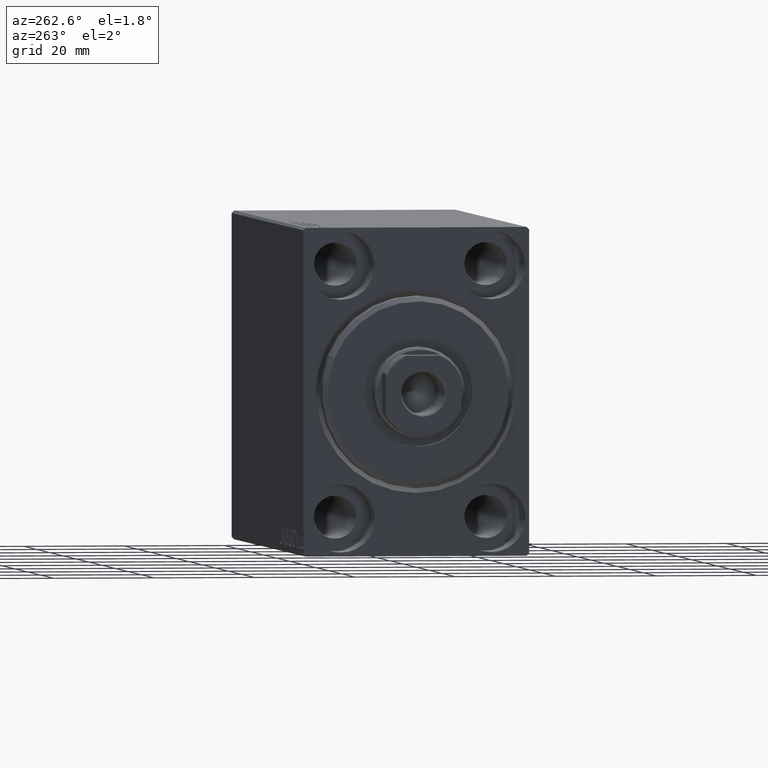
[diagram: clean part render]
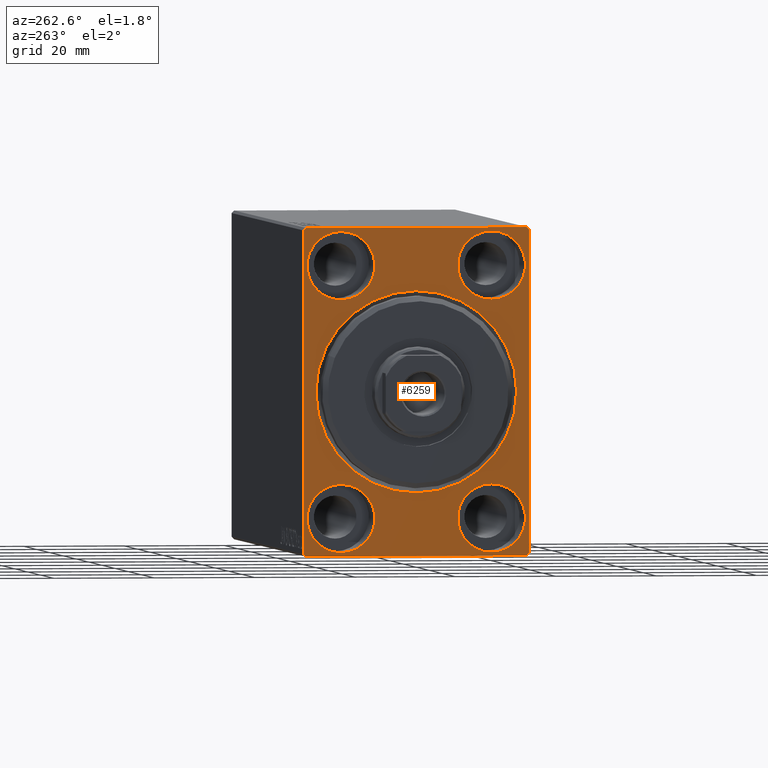
[diagram: same view with one face highlighted and labeled with its STEP entity id]
A machine part, auxiliary view. The second image highlights one B-rep face of the part: STEP entity #6259.
In plain terms, the highlighted planar face has unit normal (1, 0, 0).
Its self-contained STEP definition (entity closure, byte-faithful):
#98 = CARTESIAN_POINT ( 'NONE',  ( 0.000000000000000000, 22.50000000000000000, -32.50000000000000711 ) ) ;
#331 = VECTOR ( 'NONE', #32405, 1000.000000000000114 ) ;
#362 = ORIENTED_EDGE ( 'NONE', *, *, #21628, .F. ) ;
#1165 = CARTESIAN_POINT ( 'NONE',  ( 0.000000000000000000, 14.99999999999999645, -25.00000000000000000 ) ) ;
#1236 = CARTESIAN_POINT ( 'NONE',  ( 0.000000000000000000, -22.00000000000000711, -32.50000000000000711 ) ) ;
#1441 = DIRECTION ( 'NONE',  ( 0.000000000000000000, 0.000000000000000000, 1.000000000000000000 ) ) ;
#1593 = DIRECTION ( 'NONE',  ( 0.000000000000000000, 0.000000000000000000, -1.000000000000000000 ) ) ;
#1604 = CARTESIAN_POINT ( 'NONE',  ( 0.000000000000000000, 15.00000000000000355, 31.75000000000000000 ) ) ;
#2065 = DIRECTION ( 'NONE',  ( 0.000000000000000000, 0.000000000000000000, 1.000000000000000000 ) ) ;
#2189 = ORIENTED_EDGE ( 'NONE', *, *, #35003, .F. ) ;
#3429 = LINE ( 'NONE', #98, #38904 ) ;
#3916 = CARTESIAN_POINT ( 'NONE',  ( 0.000000000000000000, -22.50000000000000711, 31.99999999999999289 ) ) ;
#5059 = EDGE_CURVE ( 'NONE', #11037, #24425, #41064, .T. ) ;
#5189 = LINE ( 'NONE', #18676, #331 ) ;
#5258 = EDGE_LOOP ( 'NONE', ( #19400, #2189 ) ) ;
#5464 = DIRECTION ( 'NONE',  ( -1.000000000000000000, 0.000000000000000000, 0.000000000000000000 ) ) ;
#5930 = CARTESIAN_POINT ( 'NONE',  ( 0.000000000000000000, -22.50000000000000711, 31.99999999999999289 ) ) ;
#6185 = LINE ( 'NONE', #9070, #20643 ) ;
#6259 = ADVANCED_FACE ( 'NONE', ( #21947, #15309, #28365, #21512, #11351, #32137 ), #31915, .F. ) ;
#6712 = EDGE_CURVE ( 'NONE', #37133, #41267, #36459, .T. ) ;
#6739 = ORIENTED_EDGE ( 'NONE', *, *, #30193, .F. ) ;
#6767 = CARTESIAN_POINT ( 'NONE',  ( 0.000000000000000000, 15.00000000000000355, 25.00000000000000000 ) ) ;
#7021 = CARTESIAN_POINT ( 'NONE',  ( 0.000000000000000000, 22.49999999999999289, 32.50000000000000000 ) ) ;
#7111 = CARTESIAN_POINT ( 'NONE',  ( 0.000000000000000000, -15.00000000000000355, -31.75000000000000000 ) ) ;
#7470 = LINE ( 'NONE', #24278, #22589 ) ;
#7562 = ORIENTED_EDGE ( 'NONE', *, *, #12898, .T. ) ;
#7589 = DIRECTION ( 'NONE',  ( -1.000000000000000000, 0.000000000000000000, 0.000000000000000000 ) ) ;
#7672 = DIRECTION ( 'NONE',  ( -0.000000000000000000, 0.7071067811865474617, 0.7071067811865474617 ) ) ;
#7743 = ORIENTED_EDGE ( 'NONE', *, *, #13160, .T. ) ;
#7968 = AXIS2_PLACEMENT_3D ( 'NONE', #8978, #28230, #35981 ) ;
#8017 = DIRECTION ( 'NONE',  ( 1.000000000000000000, 0.000000000000000000, 0.000000000000000000 ) ) ;
#8083 = DIRECTION ( 'NONE',  ( 0.000000000000000000, 0.000000000000000000, 1.000000000000000000 ) ) ;
#8755 = LINE ( 'NONE', #1236, #12261 ) ;
#8978 = CARTESIAN_POINT ( 'NONE',  ( 0.000000000000000000, 0.000000000000000000, 0.000000000000000000 ) ) ;
#9070 = CARTESIAN_POINT ( 'NONE',  ( 0.000000000000000000, -22.50000000000000711, -32.50000000000000711 ) ) ;
#9328 = VERTEX_POINT ( 'NONE', #30154 ) ;
#9761 = CARTESIAN_POINT ( 'NONE',  ( 0.000000000000000000, 14.99999999999999645, -25.00000000000000000 ) ) ;
#10029 = ORIENTED_EDGE ( 'NONE', *, *, #5059, .F. ) ;
#10065 = DIRECTION ( 'NONE',  ( 1.000000000000000000, 0.000000000000000000, 0.000000000000000000 ) ) ;
#10416 = VERTEX_POINT ( 'NONE', #26177 ) ;
#10437 = DIRECTION ( 'NONE',  ( -1.000000000000000000, 0.000000000000000000, 0.000000000000000000 ) ) ;
#10911 = CIRCLE ( 'NONE', #23625, 6.749999999999999112 ) ;
#11037 = VERTEX_POINT ( 'NONE', #5930 ) ;
#11351 = FACE_BOUND ( 'NONE', #27649, .T. ) ;
#12261 = VECTOR ( 'NONE', #22024, 1000.000000000000114 ) ;
#12560 = EDGE_LOOP ( 'NONE', ( #10029, #7743, #16458, #27702, #12847, #36982, #19622, #15077 ) ) ;
#12847 = ORIENTED_EDGE ( 'NONE', *, *, #23876, .F. ) ;
#12898 = EDGE_CURVE ( 'NONE', #23324, #33015, #21716, .T. ) ;
#13160 = EDGE_CURVE ( 'NONE', #11037, #38866, #17180, .T. ) ;
#13247 = DIRECTION ( 'NONE',  ( -0.000000000000000000, 0.7071067811865525687, -0.7071067811865425767 ) ) ;
#13466 = AXIS2_PLACEMENT_3D ( 'NONE', #9761, #39881, #42995 ) ;
#13602 = DIRECTION ( 'NONE',  ( 0.000000000000000000, -1.067522139062650425E-16, 1.000000000000000000 ) ) ;
#15028 = VERTEX_POINT ( 'NONE', #21230 ) ;
#15077 = ORIENTED_EDGE ( 'NONE', *, *, #31988, .T. ) ;
#15161 = CARTESIAN_POINT ( 'NONE',  ( 0.000000000000000000, -14.99999999999999645, 25.00000000000000000 ) ) ;
#15309 = FACE_BOUND ( 'NONE', #5258, .T. ) ;
#15518 = AXIS2_PLACEMENT_3D ( 'NONE', #22201, #21985, #2065 ) ;
#15754 = CIRCLE ( 'NONE', #7968, 20.00000000000000355 ) ;
#16275 = VERTEX_POINT ( 'NONE', #28729 ) ;
#16343 = CARTESIAN_POINT ( 'NONE',  ( 0.000000000000000000, 22.49999999999999289, 32.00000000000002132 ) ) ;
#16458 = ORIENTED_EDGE ( 'NONE', *, *, #19836, .F. ) ;
#16573 = DIRECTION ( 'NONE',  ( 0.000000000000000000, 1.000000000000000000, 0.000000000000000000 ) ) ;
#16732 = EDGE_CURVE ( 'NONE', #10416, #30643, #26104, .T. ) ;
#16971 = LINE ( 'NONE', #7021, #42462 ) ;
#17101 = DIRECTION ( 'NONE',  ( 0.000000000000000000, 0.000000000000000000, 1.000000000000000000 ) ) ;
#17180 = LINE ( 'NONE', #3916, #40850 ) ;
#18343 = EDGE_CURVE ( 'NONE', #15028, #43167, #7470, .T. ) ;
#18421 = CARTESIAN_POINT ( 'NONE',  ( 0.000000000000000000, -14.99999999999999645, 18.25000000000000355 ) ) ;
#18676 = CARTESIAN_POINT ( 'NONE',  ( 0.000000000000000000, 22.50000000000000000, -32.00000000000000711 ) ) ;
#19400 = ORIENTED_EDGE ( 'NONE', *, *, #20139, .F. ) ;
#19577 = CARTESIAN_POINT ( 'NONE',  ( 0.000000000000000000, 14.99999999999999645, -18.25000000000000355 ) ) ;
#19622 = ORIENTED_EDGE ( 'NONE', *, *, #30134, .F. ) ;
#19836 = EDGE_CURVE ( 'NONE', #15028, #38866, #16971, .T. ) ;
#20139 = EDGE_CURVE ( 'NONE', #32770, #16275, #38907, .T. ) ;
#20150 = CIRCLE ( 'NONE', #22259, 6.749999999999999112 ) ;
#20232 = DIRECTION ( 'NONE',  ( 0.000000000000000000, 0.000000000000000000, -1.000000000000000000 ) ) ;
#20258 = DIRECTION ( 'NONE',  ( 0.000000000000000000, 0.000000000000000000, 1.000000000000000000 ) ) ;
#20643 = VECTOR ( 'NONE', #16573, 1000.000000000000000 ) ;
#20736 = CARTESIAN_POINT ( 'NONE',  ( 0.000000000000000000, 15.00000000000000355, 18.25000000000000355 ) ) ;
#21230 = CARTESIAN_POINT ( 'NONE',  ( 0.000000000000000000, 22.00000000000000711, 32.50000000000000000 ) ) ;
#21278 = CARTESIAN_POINT ( 'NONE',  ( 0.000000000000000000, -22.50000000000000711, -32.00000000000000711 ) ) ;
#21512 = FACE_BOUND ( 'NONE', #43251, .T. ) ;
#21591 = VERTEX_POINT ( 'NONE', #27352 ) ;
#21628 = EDGE_CURVE ( 'NONE', #41267, #37133, #28305, .T. ) ;
#21716 = CIRCLE ( 'NONE', #28094, 20.00000000000000355 ) ;
#21722 = ORIENTED_EDGE ( 'NONE', *, *, #31940, .T. ) ;
#21947 = FACE_BOUND ( 'NONE', #31873, .T. ) ;
#21985 = DIRECTION ( 'NONE',  ( -1.000000000000000000, 0.000000000000000000, 0.000000000000000000 ) ) ;
#22024 = DIRECTION ( 'NONE',  ( -0.000000000000000000, -0.7071067811865474617, 0.7071067811865474617 ) ) ;
#22033 = EDGE_CURVE ( 'NONE', #30643, #10416, #40277, .T. ) ;
#22201 = CARTESIAN_POINT ( 'NONE',  ( 0.000000000000000000, -15.00000000000000355, -25.00000000000000000 ) ) ;
#22259 = AXIS2_PLACEMENT_3D ( 'NONE', #6767, #26905, #20258 ) ;
#22585 = VERTEX_POINT ( 'NONE', #22950 ) ;
#22589 = VECTOR ( 'NONE', #13247, 999.9999999999998863 ) ;
#22769 = CARTESIAN_POINT ( 'NONE',  ( 0.000000000000000000, -21.99999999999999289, 32.49999999999999289 ) ) ;
#22950 = CARTESIAN_POINT ( 'NONE',  ( 0.000000000000000000, 22.50000000000000000, -32.00000000000000711 ) ) ;
#23324 = VERTEX_POINT ( 'NONE', #28287 ) ;
#23625 = AXIS2_PLACEMENT_3D ( 'NONE', #1165, #7589, #17101 ) ;
#23876 = EDGE_CURVE ( 'NONE', #22585, #43167, #3429, .T. ) ;
#23992 = DIRECTION ( 'NONE',  ( 0.000000000000000000, 0.000000000000000000, -1.000000000000000000 ) ) ;
#24213 = CARTESIAN_POINT ( 'NONE',  ( 0.000000000000000000, -22.50000000000000711, 32.49999999999999289 ) ) ;
#24278 = CARTESIAN_POINT ( 'NONE',  ( 0.000000000000000000, 22.00000000000000711, 32.50000000000000000 ) ) ;
#24404 = AXIS2_PLACEMENT_3D ( 'NONE', #38131, #8017, #1593 ) ;
#24425 = VERTEX_POINT ( 'NONE', #21278 ) ;
#25596 = CARTESIAN_POINT ( 'NONE',  ( 0.000000000000000000, -14.99999999999999645, 25.00000000000000000 ) ) ;
#25612 = CIRCLE ( 'NONE', #36216, 6.749999999999999112 ) ;
#25829 = VERTEX_POINT ( 'NONE', #20736 ) ;
#26104 = CIRCLE ( 'NONE', #15518, 6.749999999999999112 ) ;
#26177 = CARTESIAN_POINT ( 'NONE',  ( 0.000000000000000000, -15.00000000000000355, -18.25000000000000355 ) ) ;
#26413 = ORIENTED_EDGE ( 'NONE', *, *, #42656, .F. ) ;
#26905 = DIRECTION ( 'NONE',  ( -1.000000000000000000, 0.000000000000000000, 0.000000000000000000 ) ) ;
#27086 = CARTESIAN_POINT ( 'NONE',  ( 0.000000000000000000, 0.000000000000000000, 0.000000000000000000 ) ) ;
#27352 = CARTESIAN_POINT ( 'NONE',  ( 0.000000000000000000, -22.00000000000000711, -32.50000000000000711 ) ) ;
#27649 = EDGE_LOOP ( 'NONE', ( #31136, #32554 ) ) ;
#27702 = ORIENTED_EDGE ( 'NONE', *, *, #18343, .T. ) ;
#28094 = AXIS2_PLACEMENT_3D ( 'NONE', #27086, #10065, #20232 ) ;
#28230 = DIRECTION ( 'NONE',  ( 1.000000000000000000, 0.000000000000000000, 0.000000000000000000 ) ) ;
#28287 = CARTESIAN_POINT ( 'NONE',  ( 0.000000000000000000, 2.449293598294706907E-15, -20.00000000000000355 ) ) ;
#28305 = CIRCLE ( 'NONE', #43200, 6.749999999999999112 ) ;
#28365 = FACE_BOUND ( 'NONE', #39318, .T. ) ;
#28729 = CARTESIAN_POINT ( 'NONE',  ( 0.000000000000000000, 14.99999999999999645, -31.75000000000000000 ) ) ;
#29368 = AXIS2_PLACEMENT_3D ( 'NONE', #25596, #5464, #32462 ) ;
#29670 = AXIS2_PLACEMENT_3D ( 'NONE', #39913, #10437, #40341 ) ;
#30134 = EDGE_CURVE ( 'NONE', #21591, #9328, #6185, .T. ) ;
#30154 = CARTESIAN_POINT ( 'NONE',  ( 0.000000000000000000, 21.99999999999998579, -32.50000000000000711 ) ) ;
#30193 = EDGE_CURVE ( 'NONE', #25829, #39328, #25612, .T. ) ;
#30271 = CARTESIAN_POINT ( 'NONE',  ( 0.000000000000000000, -14.99999999999999645, 31.75000000000000000 ) ) ;
#30643 = VERTEX_POINT ( 'NONE', #7111 ) ;
#31136 = ORIENTED_EDGE ( 'NONE', *, *, #16732, .F. ) ;
#31758 = CARTESIAN_POINT ( 'NONE',  ( 0.000000000000000000, 15.00000000000000355, 25.00000000000000000 ) ) ;
#31873 = EDGE_LOOP ( 'NONE', ( #21722, #7562 ) ) ;
#31915 = PLANE ( 'NONE',  #24404 ) ;
#31940 = EDGE_CURVE ( 'NONE', #33015, #23324, #15754, .T. ) ;
#31988 = EDGE_CURVE ( 'NONE', #21591, #24425, #8755, .T. ) ;
#32137 = FACE_OUTER_BOUND ( 'NONE', #12560, .T. ) ;
#32378 = CARTESIAN_POINT ( 'NONE',  ( 0.000000000000000000, 0.000000000000000000, 20.00000000000000355 ) ) ;
#32405 = DIRECTION ( 'NONE',  ( 0.000000000000000000, -0.7071067811865474617, -0.7071067811865474617 ) ) ;
#32462 = DIRECTION ( 'NONE',  ( 0.000000000000000000, 0.000000000000000000, 1.000000000000000000 ) ) ;
#32554 = ORIENTED_EDGE ( 'NONE', *, *, #22033, .F. ) ;
#32770 = VERTEX_POINT ( 'NONE', #19577 ) ;
#33015 = VERTEX_POINT ( 'NONE', #32378 ) ;
#34249 = DIRECTION ( 'NONE',  ( 0.000000000000000000, -1.000000000000000000, -1.541976423090495387E-16 ) ) ;
#34442 = DIRECTION ( 'NONE',  ( -1.000000000000000000, 0.000000000000000000, 0.000000000000000000 ) ) ;
#35003 = EDGE_CURVE ( 'NONE', #16275, #32770, #10911, .T. ) ;
#35981 = DIRECTION ( 'NONE',  ( 0.000000000000000000, 0.000000000000000000, -1.000000000000000000 ) ) ;
#36216 = AXIS2_PLACEMENT_3D ( 'NONE', #31758, #34442, #1441 ) ;
#36459 = CIRCLE ( 'NONE', #29368, 6.749999999999999112 ) ;
#36905 = ORIENTED_EDGE ( 'NONE', *, *, #6712, .F. ) ;
#36982 = ORIENTED_EDGE ( 'NONE', *, *, #42914, .T. ) ;
#37133 = VERTEX_POINT ( 'NONE', #30271 ) ;
#38131 = CARTESIAN_POINT ( 'NONE',  ( 0.000000000000000000, 0.000000000000000000, 0.000000000000000000 ) ) ;
#38414 = DIRECTION ( 'NONE',  ( -1.000000000000000000, 0.000000000000000000, 0.000000000000000000 ) ) ;
#38866 = VERTEX_POINT ( 'NONE', #22769 ) ;
#38904 = VECTOR ( 'NONE', #13602, 1000.000000000000000 ) ;
#38907 = CIRCLE ( 'NONE', #13466, 6.749999999999999112 ) ;
#39318 = EDGE_LOOP ( 'NONE', ( #36905, #362 ) ) ;
#39328 = VERTEX_POINT ( 'NONE', #1604 ) ;
#39881 = DIRECTION ( 'NONE',  ( -1.000000000000000000, 0.000000000000000000, 0.000000000000000000 ) ) ;
#39913 = CARTESIAN_POINT ( 'NONE',  ( 0.000000000000000000, -15.00000000000000355, -25.00000000000000000 ) ) ;
#40277 = CIRCLE ( 'NONE', #29670, 6.749999999999999112 ) ;
#40341 = DIRECTION ( 'NONE',  ( 0.000000000000000000, 0.000000000000000000, 1.000000000000000000 ) ) ;
#40850 = VECTOR ( 'NONE', #7672, 1000.000000000000114 ) ;
#41064 = LINE ( 'NONE', #24213, #42073 ) ;
#41267 = VERTEX_POINT ( 'NONE', #18421 ) ;
#42073 = VECTOR ( 'NONE', #23992, 1000.000000000000000 ) ;
#42462 = VECTOR ( 'NONE', #34249, 1000.000000000000000 ) ;
#42656 = EDGE_CURVE ( 'NONE', #39328, #25829, #20150, .T. ) ;
#42914 = EDGE_CURVE ( 'NONE', #22585, #9328, #5189, .T. ) ;
#42995 = DIRECTION ( 'NONE',  ( 0.000000000000000000, 0.000000000000000000, 1.000000000000000000 ) ) ;
#43167 = VERTEX_POINT ( 'NONE', #16343 ) ;
#43200 = AXIS2_PLACEMENT_3D ( 'NONE', #15161, #38414, #8083 ) ;
#43251 = EDGE_LOOP ( 'NONE', ( #26413, #6739 ) ) ;